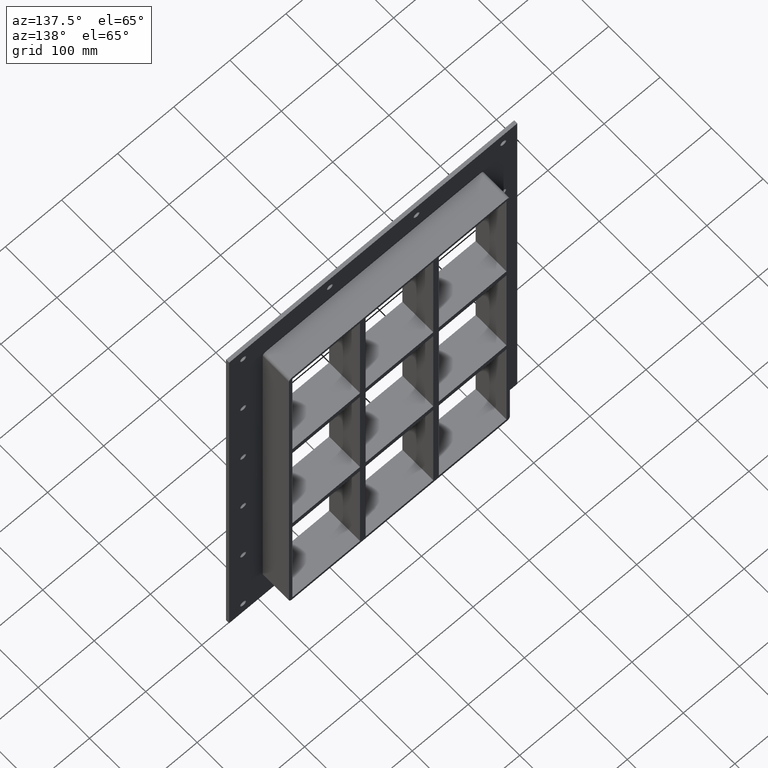
[diagram: clean part render]
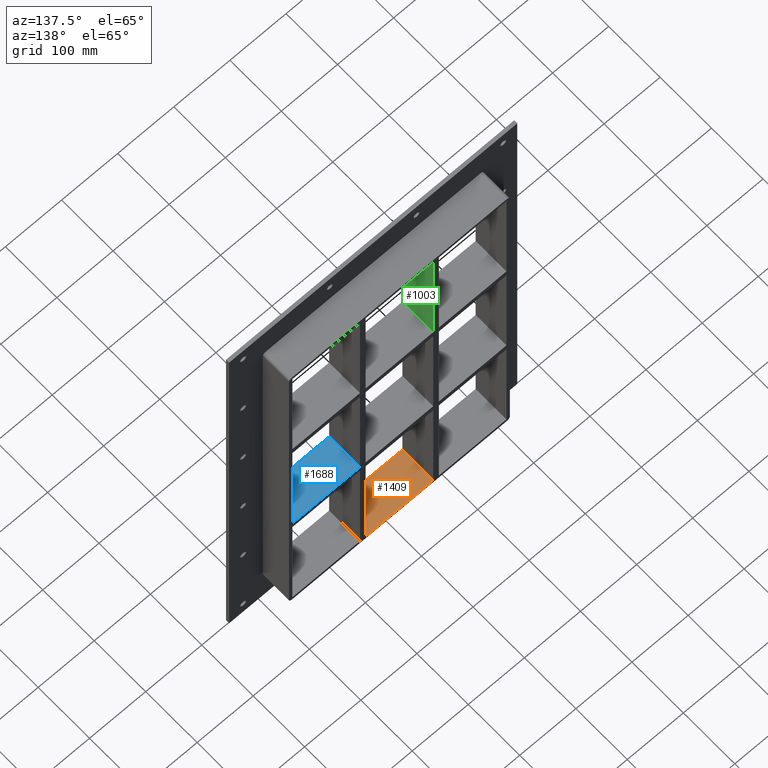
[diagram: same view with three faces highlighted in distinct colors, each labeled with its STEP entity id]
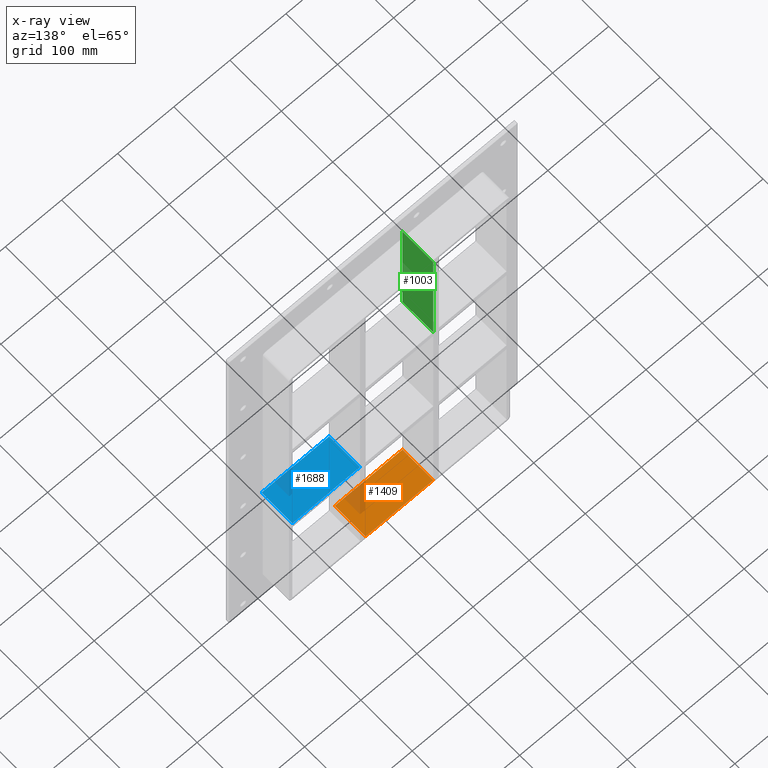
[diagram: x-ray of the same camera — body ghosted, the three highlighted faces saturated]
A machine part, auxiliary view with three faces highlighted in distinct colors.
The next image is the same camera in x-ray (body ghosted, the three faces saturated) — at least one of them is partly hidden behind the body in this view.
Their STEP definitions:

[orange] entity #1409 — the highlighted planar face has unit normal (0, 0, -1).
#1196=CARTESIAN_POINT('',(60.249999999997961,57.0,-339.0));
#1197=VERTEX_POINT('',#1196);
#1214=CARTESIAN_POINT('',(-60.249999999996362,57.0,-338.99999999998636));
#1215=VERTEX_POINT('',#1214);
#1222=CARTESIAN_POINT('',(-60.249999999996362,57.0,-339.0));
#1223=DIRECTION('',(1.0,0.0,0.0));
#1224=VECTOR('',#1223,120.49999999999433);
#1225=LINE('',#1222,#1224);
#1226=EDGE_CURVE('',#1215,#1197,#1225,.T.);
#1314=CARTESIAN_POINT('',(60.249999999997961,-3.0,-339.0));
#1315=VERTEX_POINT('',#1314);
#1316=CARTESIAN_POINT('',(60.249999999997961,-3.0,-339.0));
#1317=DIRECTION('',(0.0,1.0,0.0));
#1318=VECTOR('',#1317,60.000000000000007);
#1319=LINE('',#1316,#1318);
#1320=EDGE_CURVE('',#1315,#1197,#1319,.T.);
#1386=CARTESIAN_POINT('',(190.75000000000011,0.0,-339.0));
#1387=DIRECTION('',(0.0,0.0,-1.0));
#1388=DIRECTION('',(-1.0,0.0,0.0));
#1389=AXIS2_PLACEMENT_3D('',#1386,#1387,#1388);
#1390=PLANE('',#1389);
#1391=ORIENTED_EDGE('',*,*,#1320,.T.);
#1392=ORIENTED_EDGE('',*,*,#1226,.F.);
#1393=CARTESIAN_POINT('',(-60.249999999996362,-3.0,-338.99999999998641));
#1394=VERTEX_POINT('',#1393);
#1395=CARTESIAN_POINT('',(-60.249999999996362,57.000000000000007,-339.0));
#1396=DIRECTION('',(0.0,-1.0,0.0));
#1397=VECTOR('',#1396,60.000000000000007);
#1398=LINE('',#1395,#1397);
#1399=EDGE_CURVE('',#1215,#1394,#1398,.T.);
#1400=ORIENTED_EDGE('',*,*,#1399,.T.);
#1401=CARTESIAN_POINT('',(60.249999999997968,-3.0,-339.0));
#1402=DIRECTION('',(-1.0,0.0,0.0));
#1403=VECTOR('',#1402,120.49999999999433);
#1404=LINE('',#1401,#1403);
#1405=EDGE_CURVE('',#1315,#1394,#1404,.T.);
#1406=ORIENTED_EDGE('',*,*,#1405,.F.);
#1407=EDGE_LOOP('',(#1391,#1392,#1400,#1406));
#1408=FACE_OUTER_BOUND('',#1407,.T.);
#1409=ADVANCED_FACE('',(#1408),#1390,.F.);

[blue] entity #1688 — the highlighted planar face has unit normal (0, 0, 1).
#793=CARTESIAN_POINT('',(190.75000000000023,57.0,-108.99999999999977));
#794=VERTEX_POINT('',#793);
#801=CARTESIAN_POINT('',(190.75000000000023,-3.0,-108.99999999999977));
#802=VERTEX_POINT('',#801);
#803=CARTESIAN_POINT('',(190.75000000000011,57.000000000000007,-108.99999999999977));
#804=DIRECTION('',(0.0,-1.0,0.0));
#805=VECTOR('',#804,60.000000000000007);
#806=LINE('',#803,#805);
#807=EDGE_CURVE('',#794,#802,#806,.T.);
#1120=CARTESIAN_POINT('',(70.250000000003638,57.0,-108.99999999999984));
#1121=VERTEX_POINT('',#1120);
#1128=CARTESIAN_POINT('',(70.250000000003638,57.0,-108.99999999999986));
#1129=DIRECTION('',(1.0,0.0,0.0));
#1130=VECTOR('',#1129,120.49999999999659);
#1131=LINE('',#1128,#1130);
#1132=EDGE_CURVE('',#1121,#794,#1131,.T.);
#1337=CARTESIAN_POINT('',(70.250000000003638,-3.0,-108.99999999999984));
#1338=VERTEX_POINT('',#1337);
#1345=CARTESIAN_POINT('',(70.250000000003638,57.0,-108.99999999999989));
#1346=DIRECTION('',(0.0,-1.0,0.0));
#1347=VECTOR('',#1346,60.0);
#1348=LINE('',#1345,#1347);
#1349=EDGE_CURVE('',#1121,#1338,#1348,.T.);
#1521=CARTESIAN_POINT('',(70.250000000003638,-3.0,-108.99999999999986));
#1522=DIRECTION('',(1.0,0.0,0.0));
#1523=VECTOR('',#1522,120.49999999999659);
#1524=LINE('',#1521,#1523);
#1525=EDGE_CURVE('',#1338,#802,#1524,.T.);
#1677=CARTESIAN_POINT('',(-190.75000000000045,-3.0,-109.00000000000006));
#1678=DIRECTION('',(0.0,0.0,1.0));
#1679=DIRECTION('',(1.0,0.0,0.0));
#1680=AXIS2_PLACEMENT_3D('',#1677,#1678,#1679);
#1681=PLANE('',#1680);
#1682=ORIENTED_EDGE('',*,*,#1349,.T.);
#1683=ORIENTED_EDGE('',*,*,#1525,.T.);
#1684=ORIENTED_EDGE('',*,*,#807,.F.);
#1685=ORIENTED_EDGE('',*,*,#1132,.F.);
#1686=EDGE_LOOP('',(#1682,#1683,#1684,#1685));
#1687=FACE_OUTER_BOUND('',#1686,.T.);
#1688=ADVANCED_FACE('',(#1687),#1681,.T.);

[green] entity #1003 — the highlighted planar face has unit normal (1, 0, 0).
#731=CARTESIAN_POINT('',(-60.249999999996362,57.0,121.00000000000006));
#732=VERTEX_POINT('',#731);
#739=CARTESIAN_POINT('',(-60.249999999996362,-3.0,121.00000000000006));
#740=VERTEX_POINT('',#739);
#741=CARTESIAN_POINT('',(-60.249999999996362,-3.0,121.00000000000006));
#742=DIRECTION('',(0.0,1.0,0.0));
#743=VECTOR('',#742,60.0);
#744=LINE('',#741,#743);
#745=EDGE_CURVE('',#740,#732,#744,.T.);
#973=CARTESIAN_POINT('',(-60.249999999996362,-3.0,339.00000000000011));
#974=DIRECTION('',(1.0,0.0,0.0));
#975=DIRECTION('',(0.0,0.0,-1.0));
#976=AXIS2_PLACEMENT_3D('',#973,#974,#975);
#977=PLANE('',#976);
#978=ORIENTED_EDGE('',*,*,#745,.T.);
#979=CARTESIAN_POINT('',(-60.249999999996362,57.0,339.00000000000011));
#980=VERTEX_POINT('',#979);
#981=CARTESIAN_POINT('',(-60.249999999996362,57.0,339.00000000000011));
#982=DIRECTION('',(0.0,0.0,-1.0));
#983=VECTOR('',#982,218.00000000000009);
#984=LINE('',#981,#983);
#985=EDGE_CURVE('',#980,#732,#984,.T.);
#986=ORIENTED_EDGE('',*,*,#985,.F.);
#987=CARTESIAN_POINT('',(-60.249999999996362,-3.0,339.00000000000011));
#988=VERTEX_POINT('',#987);
#989=CARTESIAN_POINT('',(-60.249999999996362,-3.0,339.00000000000006));
#990=DIRECTION('',(0.0,1.0,0.0));
#991=VECTOR('',#990,60.000000000000007);
#992=LINE('',#989,#991);
#993=EDGE_CURVE('',#988,#980,#992,.T.);
#994=ORIENTED_EDGE('',*,*,#993,.F.);
#995=CARTESIAN_POINT('',(-60.249999999996362,-3.0,339.00000000000011));
#996=DIRECTION('',(0.0,0.0,-1.0));
#997=VECTOR('',#996,218.00000000000009);
#998=LINE('',#995,#997);
#999=EDGE_CURVE('',#988,#740,#998,.T.);
#1000=ORIENTED_EDGE('',*,*,#999,.T.);
#1001=EDGE_LOOP('',(#978,#986,#994,#1000));
#1002=FACE_OUTER_BOUND('',#1001,.T.);
#1003=ADVANCED_FACE('',(#1002),#977,.T.);